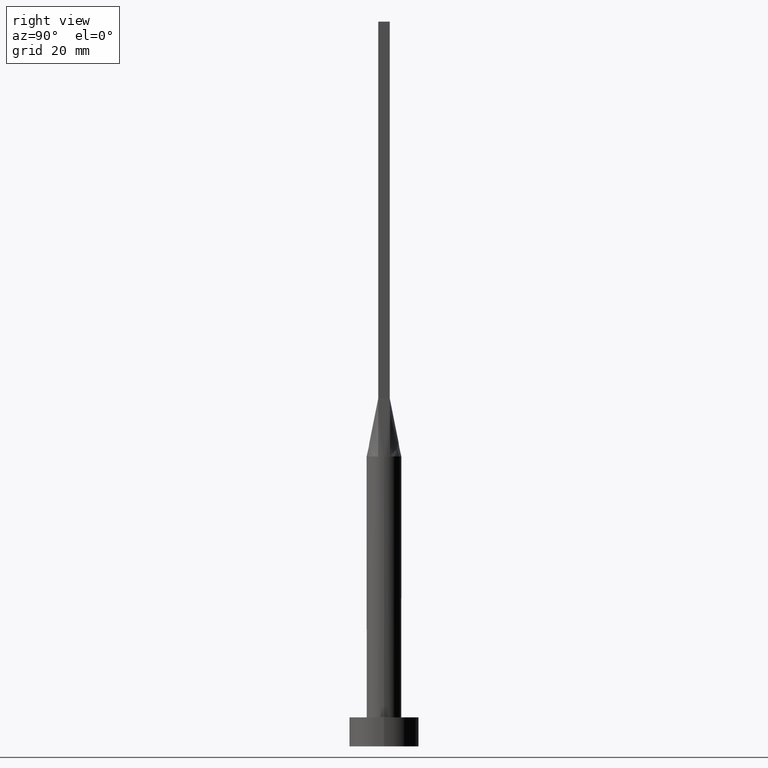
[diagram: clean part render]
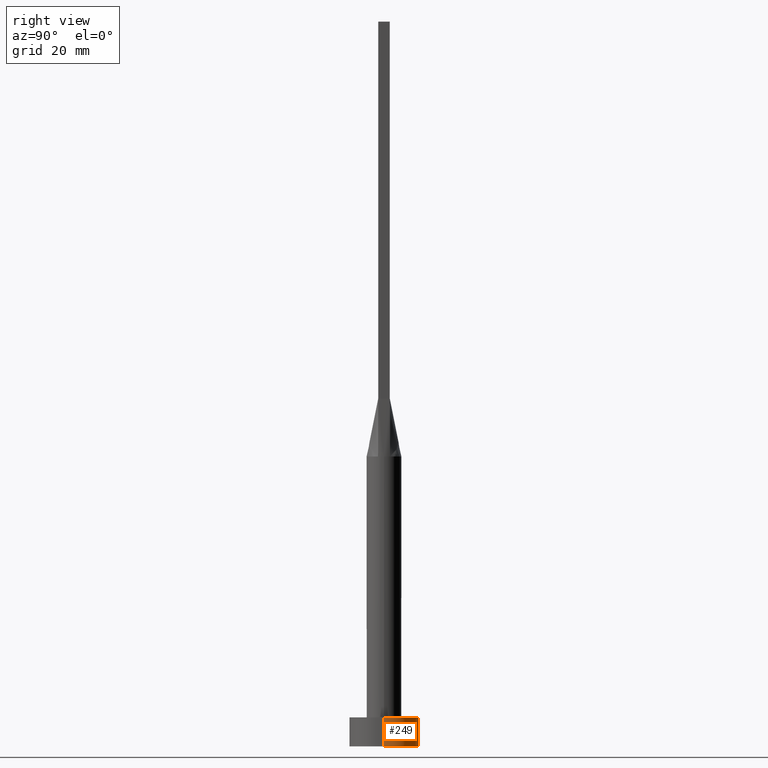
[diagram: same view with one face highlighted and labeled with its STEP entity id]
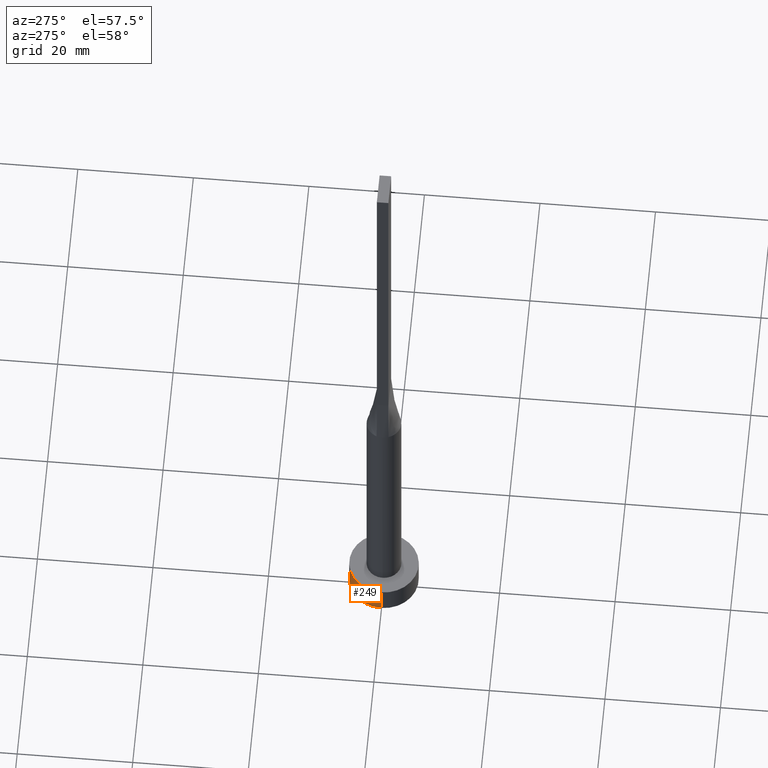
[diagram: same view with one face highlighted and labeled with its STEP entity id]
A machine part, right view. The second image highlights one B-rep face of the part: STEP entity #249.
A second angle (auxiliary view) of the same face is appended — the face is thin or edge-on in the first view.
In plain terms, the highlighted cylindrical surface (edge-blend (fillet) strip) has radius 6 mm, axis along (-0, -0, -1).
Its self-contained STEP definition (entity closure, byte-faithful):
#8 = EDGE_LOOP ( 'NONE', ( #441, #580, #504, #439 ) ) ;
#15 = LINE ( 'NONE', #190, #174 ) ;
#29 = CIRCLE ( 'NONE', #65, 6.000000000000000888 ) ;
#65 = AXIS2_PLACEMENT_3D ( 'NONE', #370, #153, #394 ) ;
#75 = DIRECTION ( 'NONE',  ( 1.000000000000000000, 0.000000000000000000, 0.000000000000000000 ) ) ;
#105 = FACE_OUTER_BOUND ( 'NONE', #8, .T. ) ;
#123 = EDGE_CURVE ( 'NONE', #327, #436, #15, .T. ) ;
#134 = CARTESIAN_POINT ( 'NONE',  ( 6.000000000000000888, 7.347880794884120722E-16, 5.000000000000000000 ) ) ;
#143 = DIRECTION ( 'NONE',  ( -0.000000000000000000, -0.000000000000000000, -1.000000000000000000 ) ) ;
#153 = DIRECTION ( 'NONE',  ( 0.000000000000000000, 0.000000000000000000, 1.000000000000000000 ) ) ;
#174 = VECTOR ( 'NONE', #423, 1000.000000000000000 ) ;
#190 = CARTESIAN_POINT ( 'NONE',  ( -6.000000000000000888, 0.000000000000000000, 5.000000000000000000 ) ) ;
#202 = DIRECTION ( 'NONE',  ( -1.000000000000000000, 0.000000000000000000, 0.000000000000000000 ) ) ;
#228 = CARTESIAN_POINT ( 'NONE',  ( 6.000000000000000888, 7.347880794884120722E-16, 5.000000000000000000 ) ) ;
#249 = ADVANCED_FACE ( 'NONE', ( #105 ), #275, .T. ) ;
#255 = LINE ( 'NONE', #228, #454 ) ;
#275 = CYLINDRICAL_SURFACE ( 'NONE', #446, 6.000000000000000888 ) ;
#297 = EDGE_CURVE ( 'NONE', #341, #327, #29, .T. ) ;
#325 = CARTESIAN_POINT ( 'NONE',  ( 6.000000000000000888, 7.347880794884120722E-16, 0.000000000000000000 ) ) ;
#327 = VERTEX_POINT ( 'NONE', #422 ) ;
#341 = VERTEX_POINT ( 'NONE', #134 ) ;
#353 = EDGE_CURVE ( 'NONE', #341, #536, #255, .T. ) ;
#370 = CARTESIAN_POINT ( 'NONE',  ( 0.000000000000000000, 0.000000000000000000, 5.000000000000000000 ) ) ;
#378 = DIRECTION ( 'NONE',  ( 0.000000000000000000, 0.000000000000000000, 1.000000000000000000 ) ) ;
#393 = AXIS2_PLACEMENT_3D ( 'NONE', #528, #378, #75 ) ;
#394 = DIRECTION ( 'NONE',  ( 1.000000000000000000, 0.000000000000000000, 0.000000000000000000 ) ) ;
#422 = CARTESIAN_POINT ( 'NONE',  ( -6.000000000000000888, 0.000000000000000000, 5.000000000000000000 ) ) ;
#423 = DIRECTION ( 'NONE',  ( -0.000000000000000000, -0.000000000000000000, -1.000000000000000000 ) ) ;
#432 = EDGE_CURVE ( 'NONE', #536, #436, #566, .T. ) ;
#436 = VERTEX_POINT ( 'NONE', #473 ) ;
#439 = ORIENTED_EDGE ( 'NONE', *, *, #123, .F. ) ;
#441 = ORIENTED_EDGE ( 'NONE', *, *, #297, .F. ) ;
#446 = AXIS2_PLACEMENT_3D ( 'NONE', #561, #523, #202 ) ;
#454 = VECTOR ( 'NONE', #143, 1000.000000000000000 ) ;
#473 = CARTESIAN_POINT ( 'NONE',  ( -6.000000000000000888, 0.000000000000000000, 0.000000000000000000 ) ) ;
#504 = ORIENTED_EDGE ( 'NONE', *, *, #432, .T. ) ;
#523 = DIRECTION ( 'NONE',  ( -0.000000000000000000, -0.000000000000000000, -1.000000000000000000 ) ) ;
#528 = CARTESIAN_POINT ( 'NONE',  ( 0.000000000000000000, 0.000000000000000000, 0.000000000000000000 ) ) ;
#536 = VERTEX_POINT ( 'NONE', #325 ) ;
#561 = CARTESIAN_POINT ( 'NONE',  ( 0.000000000000000000, 0.000000000000000000, 5.000000000000000000 ) ) ;
#566 = CIRCLE ( 'NONE', #393, 6.000000000000000888 ) ;
#580 = ORIENTED_EDGE ( 'NONE', *, *, #353, .T. ) ;